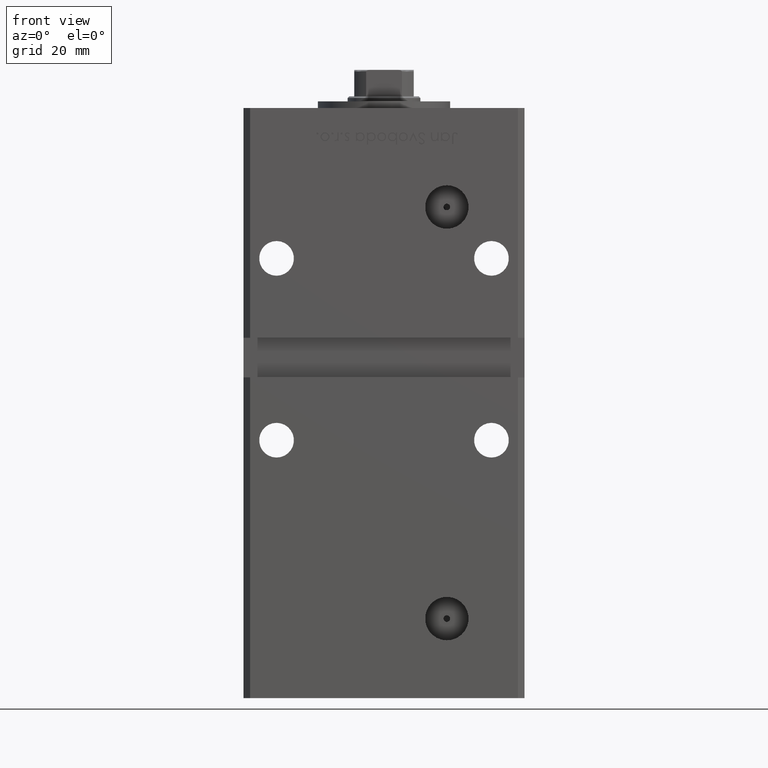
[diagram: clean part render]
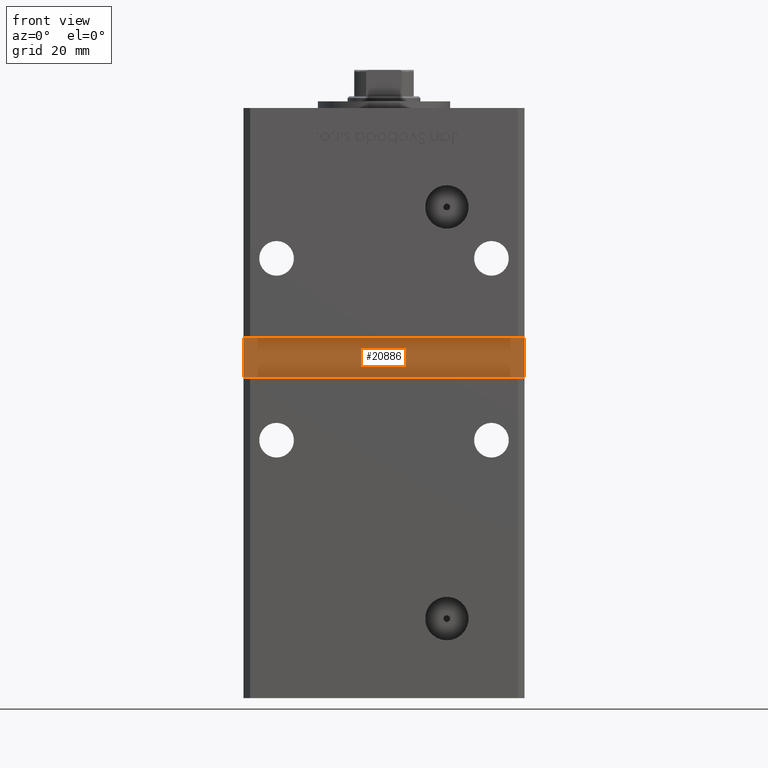
[diagram: same view with one face highlighted and labeled with its STEP entity id]
A machine part, front view. The second image highlights one B-rep face of the part: STEP entity #20886.
In plain terms, the highlighted planar face has unit normal (0, -1, 0).
Its self-contained STEP definition (entity closure, byte-faithful):
#801 = CARTESIAN_POINT ( 'NONE',  ( -42.49999999999998579, -32.50000000000000711, 82.00000000000000000 ) ) ;
#1089 = VECTOR ( 'NONE', #19321, 1000.000000000000000 ) ;
#1221 = CARTESIAN_POINT ( 'NONE',  ( 42.49999999999998579, -32.50000000000000711, 94.00000000000000000 ) ) ;
#1282 = VERTEX_POINT ( 'NONE', #801 ) ;
#2237 = FACE_OUTER_BOUND ( 'NONE', #16939, .T. ) ;
#5705 = ORIENTED_EDGE ( 'NONE', *, *, #22845, .T. ) ;
#6140 = LINE ( 'NONE', #39249, #1089 ) ;
#8623 = LINE ( 'NONE', #25046, #32633 ) ;
#9231 = CARTESIAN_POINT ( 'NONE',  ( 0.000000000000000000, -32.50000000000000711, 0.000000000000000000 ) ) ;
#10060 = DIRECTION ( 'NONE',  ( -0.000000000000000000, -0.000000000000000000, 1.000000000000000000 ) ) ;
#11327 = VERTEX_POINT ( 'NONE', #40567 ) ;
#13202 = DIRECTION ( 'NONE',  ( -5.782411586589358625E-16, 0.000000000000000000, -1.000000000000000000 ) ) ;
#13461 = CARTESIAN_POINT ( 'NONE',  ( -42.49999999999998579, -32.50000000000000711, 82.00000000000000000 ) ) ;
#16725 = VERTEX_POINT ( 'NONE', #33512 ) ;
#16939 = EDGE_LOOP ( 'NONE', ( #49920, #30619, #45207, #5705 ) ) ;
#19321 = DIRECTION ( 'NONE',  ( -1.000000000000000000, -0.000000000000000000, -0.000000000000000000 ) ) ;
#20886 = ADVANCED_FACE ( 'NONE', ( #2237 ), #46112, .T. ) ;
#22845 = EDGE_CURVE ( 'NONE', #1282, #16725, #38489, .T. ) ;
#25046 = CARTESIAN_POINT ( 'NONE',  ( -42.49999999999998579, -32.50000000000000711, 94.00000000000000000 ) ) ;
#25825 = VERTEX_POINT ( 'NONE', #32171 ) ;
#28129 = EDGE_CURVE ( 'NONE', #11327, #25825, #6140, .T. ) ;
#30526 = LINE ( 'NONE', #1221, #35193 ) ;
#30619 = ORIENTED_EDGE ( 'NONE', *, *, #28129, .T. ) ;
#32171 = CARTESIAN_POINT ( 'NONE',  ( -42.49999999999998579, -32.50000000000000711, 94.00000000000000000 ) ) ;
#32633 = VECTOR ( 'NONE', #13202, 1000.000000000000000 ) ;
#33512 = CARTESIAN_POINT ( 'NONE',  ( 42.49999999999998579, -32.50000000000000000, 82.00000000000000000 ) ) ;
#35193 = VECTOR ( 'NONE', #10060, 1000.000000000000000 ) ;
#38039 = DIRECTION ( 'NONE',  ( 0.000000000000000000, -1.000000000000000000, 0.000000000000000000 ) ) ;
#38489 = LINE ( 'NONE', #13461, #43040 ) ;
#38697 = AXIS2_PLACEMENT_3D ( 'NONE', #9231, #38039, #51216 ) ;
#39249 = CARTESIAN_POINT ( 'NONE',  ( -42.49999999999998579, -32.50000000000000711, 94.00000000000000000 ) ) ;
#39303 = DIRECTION ( 'NONE',  ( 1.000000000000000000, 0.000000000000000000, 0.000000000000000000 ) ) ;
#40567 = CARTESIAN_POINT ( 'NONE',  ( 42.49999999999998579, -32.50000000000000711, 94.00000000000000000 ) ) ;
#43040 = VECTOR ( 'NONE', #39303, 1000.000000000000000 ) ;
#45207 = ORIENTED_EDGE ( 'NONE', *, *, #49251, .T. ) ;
#46112 = PLANE ( 'NONE',  #38697 ) ;
#46854 = EDGE_CURVE ( 'NONE', #16725, #11327, #30526, .T. ) ;
#49251 = EDGE_CURVE ( 'NONE', #25825, #1282, #8623, .T. ) ;
#49920 = ORIENTED_EDGE ( 'NONE', *, *, #46854, .T. ) ;
#51216 = DIRECTION ( 'NONE',  ( 0.000000000000000000, -0.000000000000000000, -1.000000000000000000 ) ) ;